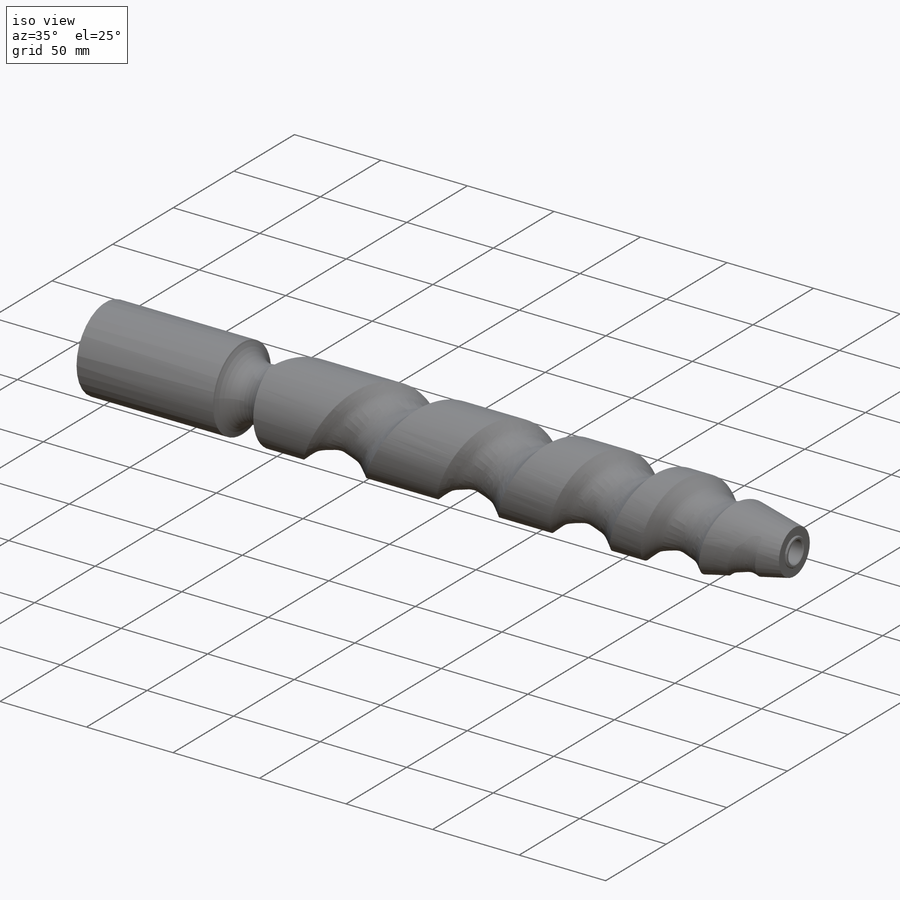
[diagram: iso view]
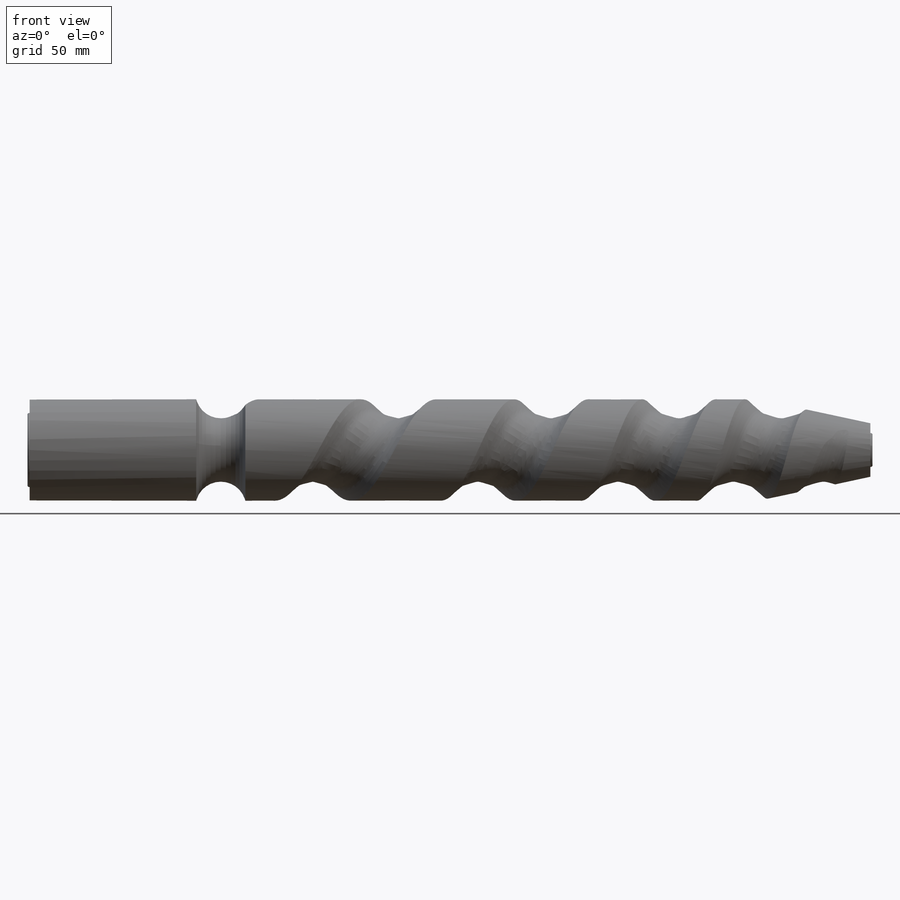
[diagram: front view]
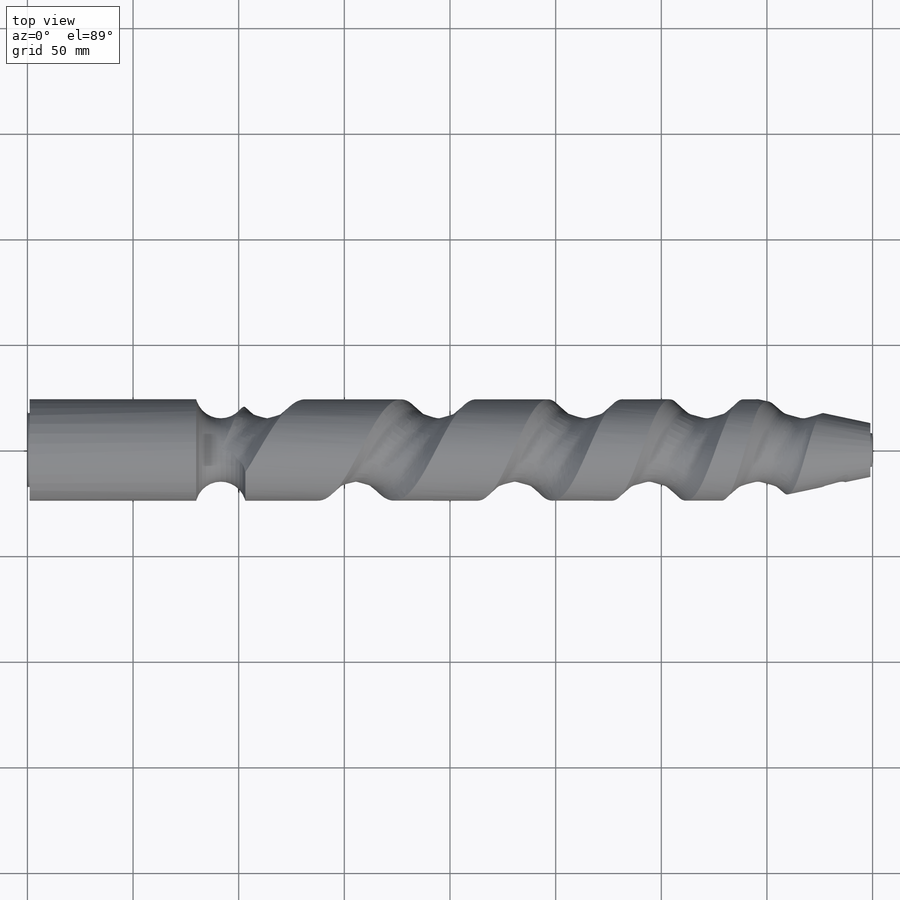
[diagram: top view]
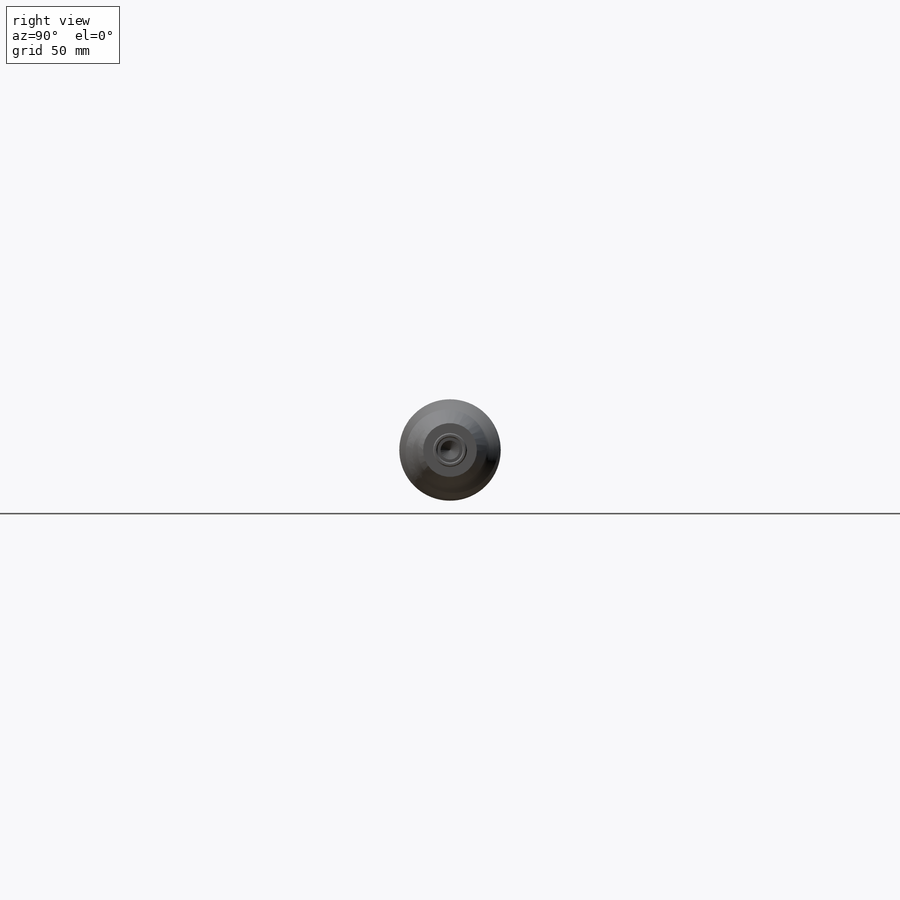
[diagram: right view]
SOLIDWORKS PART (.sldprt)
format: sldprt  version: not decoded by parser v0  size: 3,678,720 bytes
history: native  units: mm
features: sketch x10, plane x5, material x1, revolve x1, extrude x1, helix x1, sweep x1, cut_revolve x1, hole x1 + 2 further entries (+9 scaffold rows collapsed)
feature tree (33):
  scaffold x9  (default folders/planes/origin — collapsed)
  material  "PA Typ 6"
  plane  "Plane FRONT X-Y"
  plane  "Plane TOP X-Z"
  plane  "Plane RIGHT Y-Z"
  "Os Y"
  "Os Z"
  sketch  "Szkic1"  dims[c1.D1=400.0mm c1.D2=1.0mm c1.D3=1.0mm c1.D4=48.0mm c1.D5=~311.872621mm c2.D5=12.0deg c2.D6=345.0mm c2.D7=16.0mm c2.D8=12.0mm c2.D9=35.0mm c2.D10=40.0mm c2.D11=20.0mm c2.D12=~25.469004mm]
  revolve  "Obrót1"  Angle=360deg
  sketch  "Szkic2"  dims[D1=24.0mm D4=23.8mm D2=27.0mm D3=103.4mm D5=103.5mm D6=91.5mm]
  sketch  "Szkic3"
  extrude  "Dodanie-wyciągnięcie1"  Depth=65mm
  plane  "Płaszczyzna1"
  sketch  "Szkic4"  dims[D1=~63.028717mm]
  helix  "Helisa/Spirala1"  Pitch=316.25mm
  sweep  "Wycięcie-wyciągnięcie po ścieżce2"
  sketch  "Szkic7"  dims[c1.D1=11.7mm c1.Obrót3=0.0 c2.D1=360.0deg]
  sketch  "Szkic5"  dims[D2=~45.938639mm D1=0.0mm]
  cut_revolve  "Wycięcie-obrót2"  Angle=360deg
  sketch  "Szkic8"  dims[c1.D1=22.0mm c1.D2=~20.64274mm c2.D1=~2.052066mm c3.D1=45.0deg c3.D2=1.5mm c3.D3=~1.074912mm c4.D3=45.0deg c4.D4=0.5mm c4.D5=~1.636775mm c5.D5=45.0deg c5.D6=~27.930687mm c6.D6=45.0deg c6.D7=0.5mm c6.D8=0.5mm c6.Obrót4=0.0 c6.D1=360.0deg]
  sketch  "Szkic9"  dims[c1.D1=12.0mm c1.D2=22.0mm c1.D3=~4.983924mm c2.D3=59.0deg c2.D4=9.0mm c2.D5=10.0mm c2.D6=12.0mm c2.D7=~376.983092mm c3.D7=45.0deg c3.D8=0.8mm c3.D9=~9.792653mm c4.D9=45.0deg c4.D10=~376.575989mm c5.D10=45.0deg c5.D11=0.5mm c5.D12=0.5mm c5.Obrót5=0.0 c5.D1=360.0deg]
  hole  "Otwór Ø6.1 (6.1)1"  [1 undecoded]
  sketch  "Szkic11"  dims[D1=~7.035017mm]
  sketch  "Szkic10"  dims[hole-wizard template sketch: 46 standard entries collapsed; hole parameters kept: c15.Średnica otworu=6.1mm c15.Głębokość otworu=12.0mm c15.D3=~14.816244mm c15.Kąt wiertła=118.0deg]
  plane  "Płaszczyzna2"
decode coverage: 13 of 16 modeling features carry decoded parameters; 2 rows unclassified (native names shown)
note: ~ marks probable driven/reference dimensions
note: 1 parameter value undecoded
note: suppression state not decoded; provenance and decode notes live in map.json
